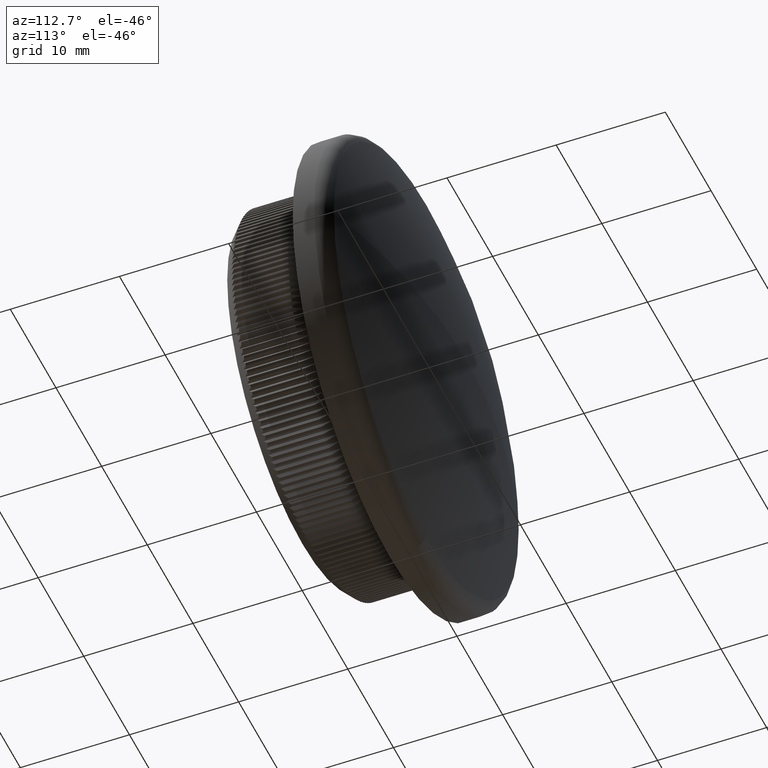
[diagram: clean part render]
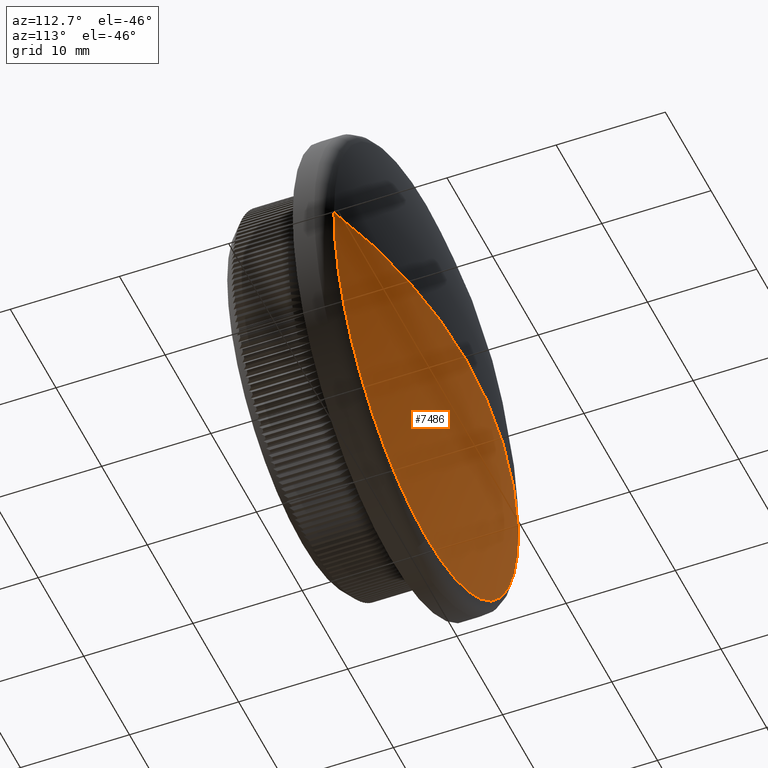
[diagram: same view with one face highlighted and labeled with its STEP entity id]
A machine part, auxiliary view. The second image highlights one B-rep face of the part: STEP entity #7486.
In plain terms, the highlighted spherical surface has radius 58.18 mm.
Its self-contained STEP definition (entity closure, byte-faithful):
#431 = AXIS2_PLACEMENT_3D ( 'NONE', #30248, #25798, #16044 ) ;
#754 = CARTESIAN_POINT ( 'NONE',  ( 0.0000000000000000000, 11.37281375303810000, 0.0000000000000000000 ) ) ;
#1202 = EDGE_CURVE ( 'NONE', #5769, #16036, #14643, .T. ) ;
#1385 = EDGE_CURVE ( 'NONE', #5769, #27644, #21303, .T. ) ;
#1678 = CARTESIAN_POINT ( 'NONE',  ( 20.22134791813689200, 11.37281375303809700, 0.0000000000000000000 ) ) ;
#1917 = EDGE_CURVE ( 'NONE', #26280, #16036, #17581, .T. ) ;
#3942 = EDGE_LOOP ( 'NONE', ( #9886, #9179, #18150, #11028 ) ) ;
#5634 = DIRECTION ( 'NONE',  ( 0.0000000000000000000, 0.0000000000000000000, 1.000000000000000000 ) ) ;
#5769 = VERTEX_POINT ( 'NONE', #22822 ) ;
#6011 = AXIS2_PLACEMENT_3D ( 'NONE', #754, #17136, #21714 ) ;
#6784 = EDGE_CURVE ( 'NONE', #27644, #26280, #29265, .T. ) ;
#7486 = ADVANCED_FACE ( 'NONE', ( #21510 ), #26329, .T. ) ;
#9179 = ORIENTED_EDGE ( 'NONE', *, *, #1385, .T. ) ;
#9792 = DIRECTION ( 'NONE',  ( 0.0000000000000000000, 0.0000000000000000000, -1.000000000000000000 ) ) ;
#9886 = ORIENTED_EDGE ( 'NONE', *, *, #1202, .F. ) ;
#10432 = CARTESIAN_POINT ( 'NONE',  ( 0.0000000000000000000, -43.18000000000007100, 0.0000000000000000000 ) ) ;
#11028 = ORIENTED_EDGE ( 'NONE', *, *, #1917, .T. ) ;
#11446 = AXIS2_PLACEMENT_3D ( 'NONE', #17431, #5634, #22205 ) ;
#12763 = DIRECTION ( 'NONE',  ( 1.000000000000000000, 0.0000000000000000000, -1.224646799147353500E-016 ) ) ;
#14643 = CIRCLE ( 'NONE', #29995, 58.18000000000007100 ) ;
#14929 = AXIS2_PLACEMENT_3D ( 'NONE', #28696, #9792, #21642 ) ;
#15561 = CARTESIAN_POINT ( 'NONE',  ( -20.22134791813689200, 11.37281375303809700, 2.476400900239134100E-015 ) ) ;
#16036 = VERTEX_POINT ( 'NONE', #15561 ) ;
#16044 = DIRECTION ( 'NONE',  ( 0.0000000000000000000, 0.0000000000000000000, -1.000000000000000000 ) ) ;
#17136 = DIRECTION ( 'NONE',  ( 0.0000000000000000000, 1.000000000000000000, 0.0000000000000000000 ) ) ;
#17431 = CARTESIAN_POINT ( 'NONE',  ( 0.0000000000000000000, -43.18000000000007100, 0.0000000000000000000 ) ) ;
#17499 = DIRECTION ( 'NONE',  ( 1.224646799147353200E-016, -0.0000000000000000000, 1.000000000000000000 ) ) ;
#17581 = CIRCLE ( 'NONE', #6011, 20.22134791813691000 ) ;
#18150 = ORIENTED_EDGE ( 'NONE', *, *, #6784, .T. ) ;
#21303 = CIRCLE ( 'NONE', #14929, 58.18000000000007100 ) ;
#21510 = FACE_OUTER_BOUND ( 'NONE', #3942, .T. ) ;
#21642 = DIRECTION ( 'NONE',  ( -1.000000000000000000, 0.0000000000000000000, 0.0000000000000000000 ) ) ;
#21714 = DIRECTION ( 'NONE',  ( 0.0000000000000000000, 0.0000000000000000000, -1.000000000000000000 ) ) ;
#22205 = DIRECTION ( 'NONE',  ( 1.000000000000000000, 0.0000000000000000000, 0.0000000000000000000 ) ) ;
#22822 = CARTESIAN_POINT ( 'NONE',  ( 3.562497538719655300E-015, 15.00000000000000000, 0.0000000000000000000 ) ) ;
#25798 = DIRECTION ( 'NONE',  ( 0.0000000000000000000, 1.000000000000000000, 0.0000000000000000000 ) ) ;
#26280 = VERTEX_POINT ( 'NONE', #29343 ) ;
#26329 = SPHERICAL_SURFACE ( 'NONE', #11446, 58.18000000000007100 ) ;
#27644 = VERTEX_POINT ( 'NONE', #1678 ) ;
#28696 = CARTESIAN_POINT ( 'NONE',  ( 0.0000000000000000000, -43.18000000000007100, 0.0000000000000000000 ) ) ;
#29265 = CIRCLE ( 'NONE', #431, 20.22134791813691000 ) ;
#29343 = CARTESIAN_POINT ( 'NONE',  ( 0.0000000000000000000, 11.37281375303810000, -20.22134791813691000 ) ) ;
#29995 = AXIS2_PLACEMENT_3D ( 'NONE', #10432, #17499, #12763 ) ;
#30248 = CARTESIAN_POINT ( 'NONE',  ( 0.0000000000000000000, 11.37281375303810000, 0.0000000000000000000 ) ) ;